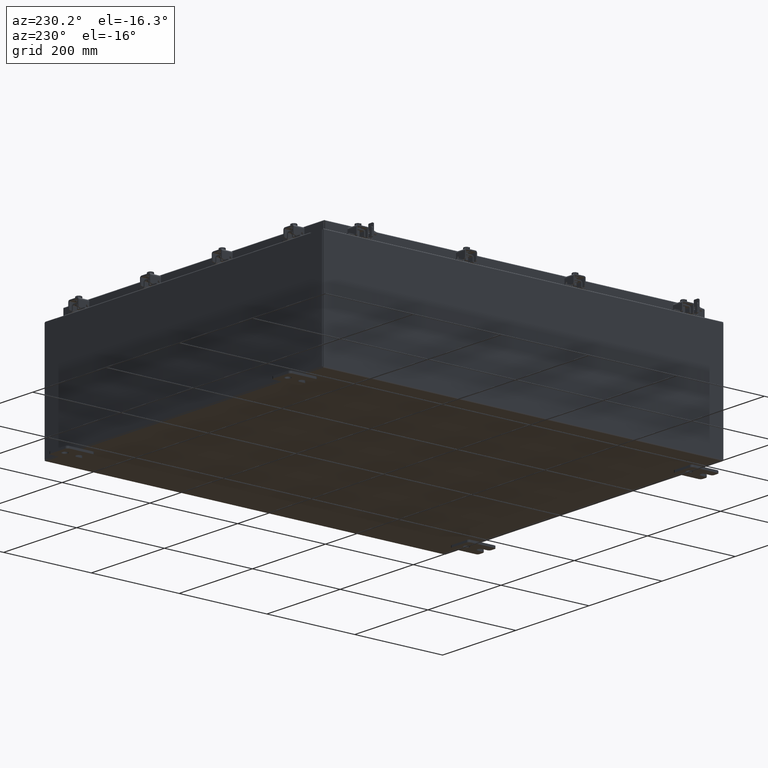
[diagram: clean part render]
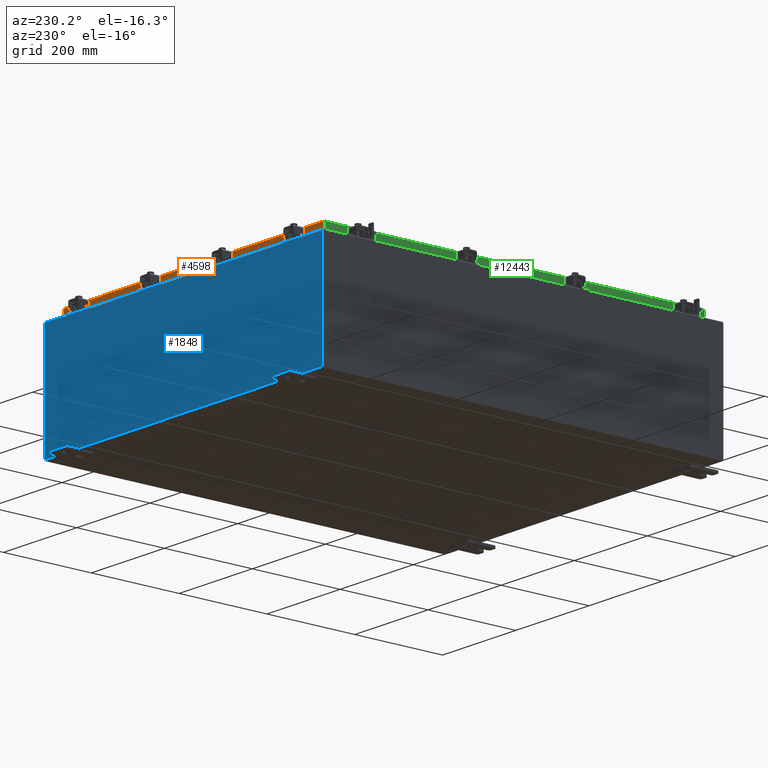
[diagram: same view with three faces highlighted in distinct colors, each labeled with its STEP entity id]
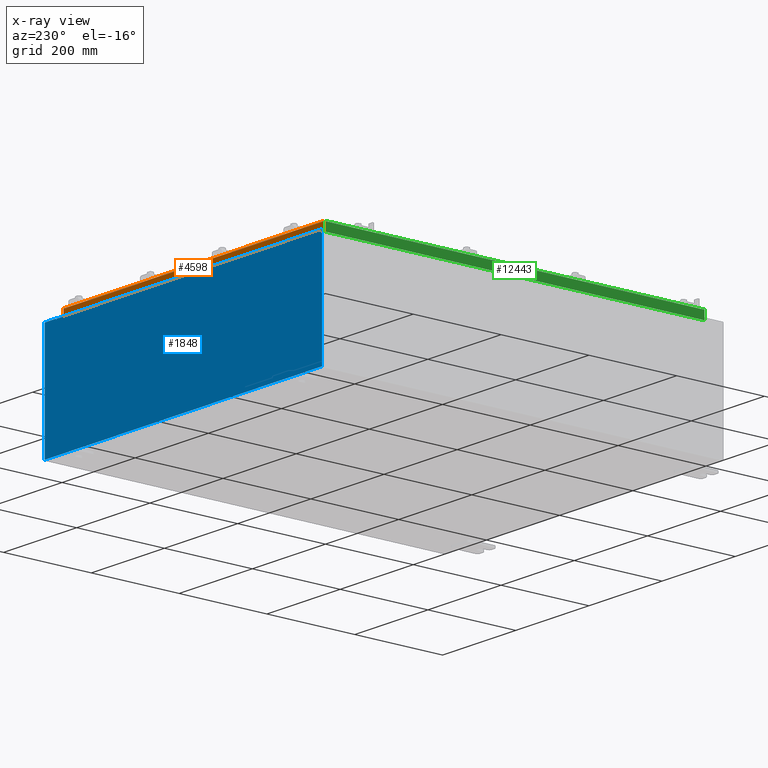
[diagram: x-ray of the same camera — body ghosted, the three highlighted faces saturated]
A machine part, auxiliary view with three faces highlighted in distinct colors.
The next image is the same camera in x-ray (body ghosted, the three faces saturated) — at least one of them is partly hidden behind the body in this view.
Their STEP definitions:

[orange] entity #4598 — the highlighted planar face has unit normal (0, -1, -0).
#9 = DIRECTION ( 'NONE',  ( -0.0000000000000000000, 2.818880942772347100E-015, -1.000000000000000000 ) ) ;
#433 = LINE ( 'NONE', #23105, #9947 ) ;
#542 = EDGE_CURVE ( 'NONE', #22898, #5264, #584, .T. ) ;
#584 = LINE ( 'NONE', #11135, #10676 ) ;
#4071 = VECTOR ( 'NONE', #10086, 39.37007874015748100 ) ;
#4598 = ADVANCED_FACE ( 'NONE', ( #14373 ), #24192, .F. ) ;
#4963 = CARTESIAN_POINT ( 'NONE',  ( -13.98915786437626900, 17.09399999999999800, -0.8500000000000032000 ) ) ;
#5264 = VERTEX_POINT ( 'NONE', #22397 ) ;
#5449 = VECTOR ( 'NONE', #15547, 39.37007874015748100 ) ;
#5680 = CARTESIAN_POINT ( 'NONE',  ( -13.98915786437626900, 17.09399999999999800, -0.07469999999999978000 ) ) ;
#5928 = CARTESIAN_POINT ( 'NONE',  ( -14.07799999999999800, 17.09399999999999800, -0.8500000000000032000 ) ) ;
#6187 = EDGE_CURVE ( 'NONE', #14328, #21488, #433, .T. ) ;
#6770 = AXIS2_PLACEMENT_3D ( 'NONE', #20408, #20488, #8939 ) ;
#8092 = EDGE_CURVE ( 'NONE', #13330, #22898, #19907, .T. ) ;
#8495 = VECTOR ( 'NONE', #19210, 39.37007874015748100 ) ;
#8939 = DIRECTION ( 'NONE',  ( 0.0000000000000000000, 2.818880942772347100E-015, -1.000000000000000000 ) ) ;
#9115 = LINE ( 'NONE', #17541, #4071 ) ;
#9947 = VECTOR ( 'NONE', #21274, 39.37007874015748100 ) ;
#10086 = DIRECTION ( 'NONE',  ( -1.000000000000000000, -1.367515671240777000E-031, -7.762034361881699600E-017 ) ) ;
#10676 = VECTOR ( 'NONE', #18654, 39.37007874015748100 ) ;
#11135 = CARTESIAN_POINT ( 'NONE',  ( -13.23915786437626400, 17.09399999999999800, -0.8500000000000040900 ) ) ;
#11483 = ORIENTED_EDGE ( 'NONE', *, *, #13083, .F. ) ;
#11667 = CARTESIAN_POINT ( 'NONE',  ( -13.23915786437626400, 17.09399999999999800, -0.8500000000000040900 ) ) ;
#11784 = CARTESIAN_POINT ( 'NONE',  ( -14.07799999999999800, 17.09399999999999800, -0.8500000000000032000 ) ) ;
#12504 = EDGE_CURVE ( 'NONE', #14328, #21451, #9115, .T. ) ;
#13083 = EDGE_CURVE ( 'NONE', #5264, #21488, #18507, .T. ) ;
#13233 = CARTESIAN_POINT ( 'NONE',  ( 13.98915786437626500, 17.09399999999999800, -0.08769999999999787700 ) ) ;
#13330 = VERTEX_POINT ( 'NONE', #4963 ) ;
#14252 = VECTOR ( 'NONE', #9, 39.37007874015748100 ) ;
#14328 = VERTEX_POINT ( 'NONE', #13233 ) ;
#14373 = FACE_OUTER_BOUND ( 'NONE', #18778, .T. ) ;
#15094 = CARTESIAN_POINT ( 'NONE',  ( 13.98915786437626500, 17.09399999999999800, -0.8499999999999996400 ) ) ;
#15331 = ORIENTED_EDGE ( 'NONE', *, *, #6187, .T. ) ;
#15547 = DIRECTION ( 'NONE',  ( 1.000000000000000000, -4.379057701015054300E-047, 1.261330583805776300E-016 ) ) ;
#15788 = ORIENTED_EDGE ( 'NONE', *, *, #19894, .F. ) ;
#16871 = ORIENTED_EDGE ( 'NONE', *, *, #8092, .F. ) ;
#17404 = ORIENTED_EDGE ( 'NONE', *, *, #542, .F. ) ;
#17541 = CARTESIAN_POINT ( 'NONE',  ( -14.07799999999999800, 17.09399999999999800, -0.08770000000000007000 ) ) ;
#18507 = LINE ( 'NONE', #5928, #8495 ) ;
#18654 = DIRECTION ( 'NONE',  ( 1.000000000000000000, -0.0000000000000000000, -0.0000000000000000000 ) ) ;
#18774 = CARTESIAN_POINT ( 'NONE',  ( -13.98915786437626700, 17.09399999999999800, -0.08769999999999897300 ) ) ;
#18778 = EDGE_LOOP ( 'NONE', ( #20248, #15331, #11483, #17404, #16871, #15788 ) ) ;
#19210 = DIRECTION ( 'NONE',  ( 1.000000000000000000, -4.379057701015054300E-047, 1.261330583805776300E-016 ) ) ;
#19281 = LINE ( 'NONE', #5680, #14252 ) ;
#19894 = EDGE_CURVE ( 'NONE', #21451, #13330, #19281, .T. ) ;
#19907 = LINE ( 'NONE', #11784, #5449 ) ;
#20248 = ORIENTED_EDGE ( 'NONE', *, *, #12504, .F. ) ;
#20408 = CARTESIAN_POINT ( 'NONE',  ( -6.077841349889359500E-030, 17.09399999999999800, 4.844676449176206800E-014 ) ) ;
#20488 = DIRECTION ( 'NONE',  ( 3.555540745226020900E-031, -1.000000000000000000, -2.818880942772347100E-015 ) ) ;
#21274 = DIRECTION ( 'NONE',  ( 0.0000000000000000000, 2.818880942772347100E-015, -1.000000000000000000 ) ) ;
#21451 = VERTEX_POINT ( 'NONE', #18774 ) ;
#21488 = VERTEX_POINT ( 'NONE', #15094 ) ;
#22397 = CARTESIAN_POINT ( 'NONE',  ( 13.23915786437625100, 17.09399999999999800, -0.8500000000000040900 ) ) ;
#22898 = VERTEX_POINT ( 'NONE', #11667 ) ;
#23105 = CARTESIAN_POINT ( 'NONE',  ( 13.98915786437626700, 17.09399999999999800, 4.844676449176206800E-014 ) ) ;
#24192 = PLANE ( 'NONE',  #6770 ) ;

[blue] entity #1848 — the highlighted planar face has unit normal (0, -1, 0).
#218 = ORIENTED_EDGE ( 'NONE', *, *, #12210, .F. ) ;
#1294 = EDGE_LOOP ( 'NONE', ( #24331, #218, #22640, #7664, #16126, #13678, #7936, #3210, #23956, #7243, #21896, #11131 ) ) ;
#1354 = DIRECTION ( 'NONE',  ( -0.0000000000000000000, 1.000000000000000000, -0.0000000000000000000 ) ) ;
#1355 = EDGE_CURVE ( 'NONE', #4952, #13692, #15709, .T. ) ;
#1381 = EDGE_CURVE ( 'NONE', #5074, #13579, #9509, .T. ) ;
#1711 = VERTEX_POINT ( 'NONE', #2050 ) ;
#1848 = ADVANCED_FACE ( 'NONE', ( #21264 ), #6702, .F. ) ;
#2050 = CARTESIAN_POINT ( 'NONE',  ( 13.67454999999999800, 0.0000000000000000000, 4.874950000000000100 ) ) ;
#2261 = LINE ( 'NONE', #15425, #17340 ) ;
#2501 = LINE ( 'NONE', #9295, #21980 ) ;
#2523 = VECTOR ( 'NONE', #21783, 39.37007874015748100 ) ;
#2740 = DIRECTION ( 'NONE',  ( -0.0000000000000000000, 1.000000000000000000, -0.0000000000000000000 ) ) ;
#2954 = CARTESIAN_POINT ( 'NONE',  ( -13.67455000000000000, -0.0000000000000000000, 0.0000000000000000000 ) ) ;
#3080 = CARTESIAN_POINT ( 'NONE',  ( 0.0000000000000000000, 0.0000000000000000000, 0.0000000000000000000 ) ) ;
#3168 = CARTESIAN_POINT ( 'NONE',  ( -14.92530000000000200, 0.0000000000000000000, 4.925300000000000000 ) ) ;
#3210 = ORIENTED_EDGE ( 'NONE', *, *, #18297, .T. ) ;
#3560 = CARTESIAN_POINT ( 'NONE',  ( -13.63720000000000000, -0.0000000000000000000, 4.874950000000000100 ) ) ;
#3583 = EDGE_CURVE ( 'NONE', #1711, #3697, #23258, .T. ) ;
#3697 = VERTEX_POINT ( 'NONE', #12532 ) ;
#3719 = CARTESIAN_POINT ( 'NONE',  ( -14.92530000000000200, 0.0000000000000000000, -4.925300000000000000 ) ) ;
#3844 = LINE ( 'NONE', #21158, #13347 ) ;
#4443 = CARTESIAN_POINT ( 'NONE',  ( -13.67455000000000000, 0.0000000000000000000, 4.874950000000000100 ) ) ;
#4888 = CARTESIAN_POINT ( 'NONE',  ( 13.65587499999999800, 0.0000000000000000000, 4.874950000000000100 ) ) ;
#4952 = VERTEX_POINT ( 'NONE', #4443 ) ;
#5030 = VECTOR ( 'NONE', #9102, 39.37007874015748100 ) ;
#5074 = VERTEX_POINT ( 'NONE', #17789 ) ;
#5302 = EDGE_CURVE ( 'NONE', #6834, #11687, #2501, .T. ) ;
#5987 = LINE ( 'NONE', #3168, #9839 ) ;
#6327 = VERTEX_POINT ( 'NONE', #17787 ) ;
#6409 = LINE ( 'NONE', #18035, #16444 ) ;
#6538 = CARTESIAN_POINT ( 'NONE',  ( -14.92530000000000200, 0.0000000000000000000, -4.925300000000000000 ) ) ;
#6702 = PLANE ( 'NONE',  #23127 ) ;
#6834 = VERTEX_POINT ( 'NONE', #15359 ) ;
#7243 = ORIENTED_EDGE ( 'NONE', *, *, #1381, .T. ) ;
#7664 = ORIENTED_EDGE ( 'NONE', *, *, #5302, .T. ) ;
#7834 = DIRECTION ( 'NONE',  ( 0.0000000000000000000, 0.0000000000000000000, -1.000000000000000000 ) ) ;
#7936 = ORIENTED_EDGE ( 'NONE', *, *, #13153, .F. ) ;
#8093 = VERTEX_POINT ( 'NONE', #17416 ) ;
#8612 = CARTESIAN_POINT ( 'NONE',  ( 13.63719999999999800, 0.0000000000000000000, 0.0000000000000000000 ) ) ;
#8936 = DIRECTION ( 'NONE',  ( 0.0000000000000000000, -0.0000000000000000000, -1.000000000000000000 ) ) ;
#9102 = DIRECTION ( 'NONE',  ( -1.000000000000000000, -0.0000000000000000000, -0.0000000000000000000 ) ) ;
#9295 = CARTESIAN_POINT ( 'NONE',  ( -13.63720000000000400, -7.171100983368691200E-016, 4.912300000000000100 ) ) ;
#9305 = VECTOR ( 'NONE', #12774, 39.37007874015748100 ) ;
#9411 = VECTOR ( 'NONE', #10318, 39.37007874015748100 ) ;
#9509 = LINE ( 'NONE', #6538, #5030 ) ;
#9690 = EDGE_CURVE ( 'NONE', #13579, #6327, #5987, .T. ) ;
#9839 = VECTOR ( 'NONE', #12638, 39.37007874015748100 ) ;
#9884 = DIRECTION ( 'NONE',  ( 0.0000000000000000000, -1.000000000000000000, 0.0000000000000000000 ) ) ;
#10197 = AXIS2_PLACEMENT_3D ( 'NONE', #4888, #2740, #12613 ) ;
#10318 = DIRECTION ( 'NONE',  ( 0.0000000000000000000, 0.0000000000000000000, -1.000000000000000000 ) ) ;
#10679 = VECTOR ( 'NONE', #17122, 39.37007874015748100 ) ;
#10867 = CARTESIAN_POINT ( 'NONE',  ( -14.92530000000000200, 0.0000000000000000000, 4.925300000000000000 ) ) ;
#11131 = ORIENTED_EDGE ( 'NONE', *, *, #22545, .T. ) ;
#11687 = VERTEX_POINT ( 'NONE', #22462 ) ;
#12118 = CARTESIAN_POINT ( 'NONE',  ( 14.92529999999999800, 0.0000000000000000000, 4.925300000000000000 ) ) ;
#12210 = EDGE_CURVE ( 'NONE', #20378, #4952, #15046, .T. ) ;
#12411 = DIRECTION ( 'NONE',  ( 1.000000000000000000, 0.0000000000000000000, 0.0000000000000000000 ) ) ;
#12532 = CARTESIAN_POINT ( 'NONE',  ( 13.63719999999999800, 0.0000000000000000000, 4.874950000000000100 ) ) ;
#12613 = DIRECTION ( 'NONE',  ( 0.0000000000000000000, 0.0000000000000000000, -1.000000000000000000 ) ) ;
#12638 = DIRECTION ( 'NONE',  ( -0.0000000000000000000, -0.0000000000000000000, 1.000000000000000000 ) ) ;
#12737 = CARTESIAN_POINT ( 'NONE',  ( -13.65587500000000000, 0.0000000000000000000, 4.874950000000000100 ) ) ;
#12774 = DIRECTION ( 'NONE',  ( 1.000000000000000000, 0.0000000000000000000, 0.0000000000000000000 ) ) ;
#13113 = DIRECTION ( 'NONE',  ( 1.000000000000000000, 0.0000000000000000000, 0.0000000000000000000 ) ) ;
#13153 = EDGE_CURVE ( 'NONE', #8093, #1711, #3844, .T. ) ;
#13347 = VECTOR ( 'NONE', #23071, 39.37007874015748100 ) ;
#13579 = VERTEX_POINT ( 'NONE', #3719 ) ;
#13678 = ORIENTED_EDGE ( 'NONE', *, *, #3583, .F. ) ;
#13692 = VERTEX_POINT ( 'NONE', #17177 ) ;
#14418 = LINE ( 'NONE', #17781, #9411 ) ;
#14606 = DIRECTION ( 'NONE',  ( 0.0000000000000000000, 0.0000000000000000000, -1.000000000000000000 ) ) ;
#15046 = CIRCLE ( 'NONE', #23148, 0.01867499999999949400 ) ;
#15359 = CARTESIAN_POINT ( 'NONE',  ( -13.63720000000000000, -7.171100983368691200E-016, 4.912300000000000100 ) ) ;
#15425 = CARTESIAN_POINT ( 'NONE',  ( -13.63720000000000000, -0.0000000000000000000, 0.0000000000000000000 ) ) ;
#15520 = LINE ( 'NONE', #10867, #9305 ) ;
#15709 = LINE ( 'NONE', #2954, #10679 ) ;
#16080 = EDGE_CURVE ( 'NONE', #18769, #5074, #14418, .T. ) ;
#16126 = ORIENTED_EDGE ( 'NONE', *, *, #17345, .F. ) ;
#16444 = VECTOR ( 'NONE', #12411, 39.37007874015748100 ) ;
#16517 = EDGE_CURVE ( 'NONE', #6834, #20378, #2261, .T. ) ;
#17122 = DIRECTION ( 'NONE',  ( 0.0000000000000000000, 0.0000000000000000000, 1.000000000000000000 ) ) ;
#17177 = CARTESIAN_POINT ( 'NONE',  ( -13.67455000000000000, 0.0000000000000000000, 4.925300000000000000 ) ) ;
#17340 = VECTOR ( 'NONE', #7834, 39.37007874015748100 ) ;
#17345 = EDGE_CURVE ( 'NONE', #3697, #11687, #17579, .T. ) ;
#17416 = CARTESIAN_POINT ( 'NONE',  ( 13.67455000000000000, 0.0000000000000000000, 4.925300000000000000 ) ) ;
#17579 = LINE ( 'NONE', #8612, #2523 ) ;
#17781 = CARTESIAN_POINT ( 'NONE',  ( 14.92529999999999800, 0.0000000000000000000, 4.925300000000000000 ) ) ;
#17787 = CARTESIAN_POINT ( 'NONE',  ( -14.92530000000000200, 0.0000000000000000000, 4.925300000000000000 ) ) ;
#17789 = CARTESIAN_POINT ( 'NONE',  ( 14.92529999999999800, 0.0000000000000000000, -4.925300000000000000 ) ) ;
#18035 = CARTESIAN_POINT ( 'NONE',  ( -14.92530000000000200, 0.0000000000000000000, 4.925300000000000000 ) ) ;
#18297 = EDGE_CURVE ( 'NONE', #8093, #18769, #15520, .T. ) ;
#18769 = VERTEX_POINT ( 'NONE', #12118 ) ;
#20378 = VERTEX_POINT ( 'NONE', #3560 ) ;
#21158 = CARTESIAN_POINT ( 'NONE',  ( 13.67454999999978500, -0.0000000000000000000, -5.935537951421795000E-013 ) ) ;
#21264 = FACE_OUTER_BOUND ( 'NONE', #1294, .T. ) ;
#21783 = DIRECTION ( 'NONE',  ( 0.0000000000000000000, 0.0000000000000000000, 1.000000000000000000 ) ) ;
#21896 = ORIENTED_EDGE ( 'NONE', *, *, #9690, .T. ) ;
#21980 = VECTOR ( 'NONE', #13113, 39.37007874015748100 ) ;
#22462 = CARTESIAN_POINT ( 'NONE',  ( 13.63719999999999800, 0.0000000000000000000, 4.912300000000000100 ) ) ;
#22545 = EDGE_CURVE ( 'NONE', #6327, #13692, #6409, .T. ) ;
#22640 = ORIENTED_EDGE ( 'NONE', *, *, #16517, .F. ) ;
#23071 = DIRECTION ( 'NONE',  ( -4.340572780400004900E-014, 0.0000000000000000000, -1.000000000000000000 ) ) ;
#23127 = AXIS2_PLACEMENT_3D ( 'NONE', #3080, #9884, #8936 ) ;
#23148 = AXIS2_PLACEMENT_3D ( 'NONE', #12737, #1354, #14606 ) ;
#23258 = CIRCLE ( 'NONE', #10197, 0.01867499999999949400 ) ;
#23956 = ORIENTED_EDGE ( 'NONE', *, *, #16080, .T. ) ;
#24331 = ORIENTED_EDGE ( 'NONE', *, *, #1355, .F. ) ;

[green] entity #12443 — the highlighted planar face has unit normal (1, 0, -0).
#72 = CARTESIAN_POINT ( 'NONE',  ( -14.07799999999999900, 17.00515786437626500, -0.08770000000000007000 ) ) ;
#594 = CARTESIAN_POINT ( 'NONE',  ( -14.07799999999999900, 17.00515786437626500, 1.586914022634634500E-013 ) ) ;
#817 = LINE ( 'NONE', #10001, #4679 ) ;
#975 = DIRECTION ( 'NONE',  ( 4.379057701015054300E-047, 1.000000000000000000, 1.238552822680358400E-016 ) ) ;
#1908 = VERTEX_POINT ( 'NONE', #7521 ) ;
#1939 = PLANE ( 'NONE',  #21394 ) ;
#2584 = VERTEX_POINT ( 'NONE', #5585 ) ;
#2710 = VERTEX_POINT ( 'NONE', #20537 ) ;
#2968 = VERTEX_POINT ( 'NONE', #20387 ) ;
#3018 = LINE ( 'NONE', #5282, #16347 ) ;
#3849 = CARTESIAN_POINT ( 'NONE',  ( -14.07799999999999900, -4.915098524856876500E-030, 3.994501956836086200E-014 ) ) ;
#3916 = EDGE_CURVE ( 'NONE', #2968, #1908, #7324, .T. ) ;
#4679 = VECTOR ( 'NONE', #11926, 39.37007874015748100 ) ;
#5282 = CARTESIAN_POINT ( 'NONE',  ( -14.07800000000000300, -17.09400000000000100, -0.8499999999999996400 ) ) ;
#5374 = VERTEX_POINT ( 'NONE', #72 ) ;
#5585 = CARTESIAN_POINT ( 'NONE',  ( -14.07799999999999400, 16.25515786437627200, -0.8500000000000025300 ) ) ;
#5778 = DIRECTION ( 'NONE',  ( 1.000000000000000000, 3.491332948470575600E-031, -2.818880942772360100E-015 ) ) ;
#6392 = ORIENTED_EDGE ( 'NONE', *, *, #14715, .T. ) ;
#7324 = LINE ( 'NONE', #9499, #21750 ) ;
#7521 = CARTESIAN_POINT ( 'NONE',  ( -14.07800000000000300, -17.00515786437626900, -0.8499999999999996400 ) ) ;
#7868 = EDGE_CURVE ( 'NONE', #20531, #2584, #19633, .T. ) ;
#8635 = CARTESIAN_POINT ( 'NONE',  ( -14.07800000000000300, -17.09400000000000100, -0.8499999999999996400 ) ) ;
#9094 = DIRECTION ( 'NONE',  ( 4.379057701015054300E-047, 1.000000000000000000, 1.238552822680358400E-016 ) ) ;
#9106 = DIRECTION ( 'NONE',  ( -0.0000000000000000000, 1.000000000000000000, -0.0000000000000000000 ) ) ;
#9499 = CARTESIAN_POINT ( 'NONE',  ( -14.07799999999999900, -17.00515786437627200, -0.07469999999999978000 ) ) ;
#9901 = ORIENTED_EDGE ( 'NONE', *, *, #7868, .F. ) ;
#10001 = CARTESIAN_POINT ( 'NONE',  ( -14.07799999999999900, -17.09400000000000100, -0.08770000000000007000 ) ) ;
#10272 = EDGE_CURVE ( 'NONE', #1908, #20531, #19254, .T. ) ;
#11559 = CARTESIAN_POINT ( 'NONE',  ( -14.07799999999999400, -16.25515786437626500, -0.8500000000000025300 ) ) ;
#11926 = DIRECTION ( 'NONE',  ( 3.491332948470575600E-031, -1.000000000000000000, -9.516562228463834600E-046 ) ) ;
#12443 = ADVANCED_FACE ( 'NONE', ( #15339 ), #1939, .F. ) ;
#14220 = VECTOR ( 'NONE', #975, 39.37007874015748100 ) ;
#14715 = EDGE_CURVE ( 'NONE', #5374, #2710, #24199, .T. ) ;
#15158 = ORIENTED_EDGE ( 'NONE', *, *, #3916, .F. ) ;
#15339 = FACE_OUTER_BOUND ( 'NONE', #21375, .T. ) ;
#16087 = ORIENTED_EDGE ( 'NONE', *, *, #10272, .F. ) ;
#16347 = VECTOR ( 'NONE', #9094, 39.37007874015748100 ) ;
#16566 = DIRECTION ( 'NONE',  ( -2.818880942772360500E-015, 6.982962677686269100E-015, -1.000000000000000000 ) ) ;
#17601 = DIRECTION ( 'NONE',  ( -2.818880942772360500E-015, 6.982962677686269100E-015, -1.000000000000000000 ) ) ;
#18976 = DIRECTION ( 'NONE',  ( -2.818880942772360100E-015, 0.0000000000000000000, -1.000000000000000000 ) ) ;
#19055 = EDGE_CURVE ( 'NONE', #2584, #2710, #3018, .T. ) ;
#19207 = VECTOR ( 'NONE', #17601, 39.37007874015748100 ) ;
#19254 = LINE ( 'NONE', #8635, #14220 ) ;
#19633 = LINE ( 'NONE', #24187, #24034 ) ;
#20387 = CARTESIAN_POINT ( 'NONE',  ( -14.07799999999999900, -17.00515786437626900, -0.08770000000000007000 ) ) ;
#20531 = VERTEX_POINT ( 'NONE', #11559 ) ;
#20537 = CARTESIAN_POINT ( 'NONE',  ( -14.07800000000000300, 17.00515786437627200, -0.8499999999999953100 ) ) ;
#20996 = EDGE_CURVE ( 'NONE', #5374, #2968, #817, .T. ) ;
#21375 = EDGE_LOOP ( 'NONE', ( #22655, #6392, #22400, #9901, #16087, #15158 ) ) ;
#21394 = AXIS2_PLACEMENT_3D ( 'NONE', #3849, #5778, #18976 ) ;
#21750 = VECTOR ( 'NONE', #16566, 39.37007874015748100 ) ;
#22400 = ORIENTED_EDGE ( 'NONE', *, *, #19055, .F. ) ;
#22655 = ORIENTED_EDGE ( 'NONE', *, *, #20996, .F. ) ;
#24034 = VECTOR ( 'NONE', #9106, 39.37007874015748100 ) ;
#24187 = CARTESIAN_POINT ( 'NONE',  ( -14.07799999999999400, -16.25515786437626900, -0.8500000000000025300 ) ) ;
#24199 = LINE ( 'NONE', #594, #19207 ) ;